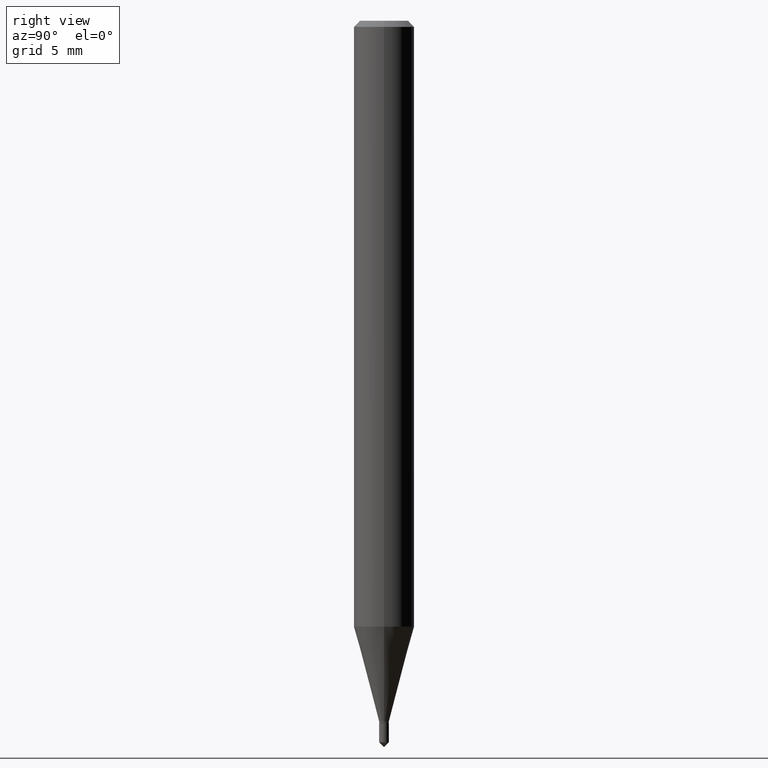
[diagram: clean part render]
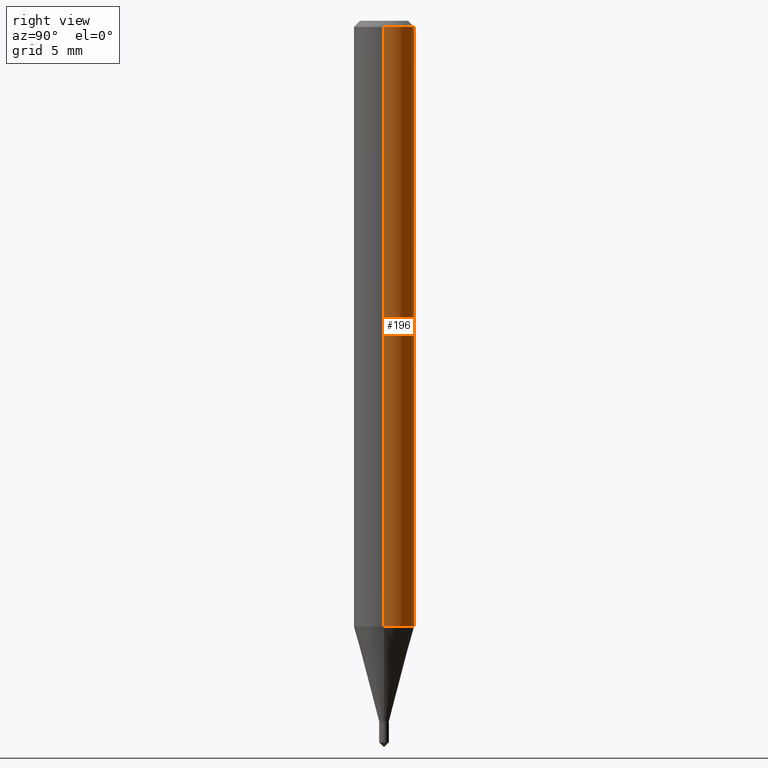
[diagram: same view with one face highlighted and labeled with its STEP entity id]
A machine part, right view. The second image highlights one B-rep face of the part: STEP entity #196.
In plain terms, the highlighted cylindrical surface (edge-blend (fillet) strip) has radius 1.5875 mm, axis along (-0, 0, 1).
Its self-contained STEP definition (entity closure, byte-faithful):
#12 = CARTESIAN_POINT ( 'NONE',  ( 0.06250000000000000000, -4.800786840909313294E-16, -0.01250000000000008570 ) ) ;
#18 = CARTESIAN_POINT ( 'NONE',  ( 0.000000000000000000, 0.000000000000000000, 0.000000000000000000 ) ) ;
#20 = EDGE_CURVE ( 'NONE', #182, #185, #81, .T. ) ;
#28 = AXIS2_PLACEMENT_3D ( 'NONE', #430, #89, #239 ) ;
#29 = DIRECTION ( 'NONE',  ( -2.445468806185136597E-29, 3.491481338843145583E-15, 1.000000000000000000 ) ) ;
#37 = ORIENTED_EDGE ( 'NONE', *, *, #65, .T. ) ;
#65 = EDGE_CURVE ( 'NONE', #141, #289, #383, .T. ) ;
#70 = CARTESIAN_POINT ( 'NONE',  ( 3.059446136316986925E-29, -4.368078245418367740E-15, -1.251067332602634252 ) ) ;
#81 = LINE ( 'NONE', #264, #406 ) ;
#89 = DIRECTION ( 'NONE',  ( -2.445468806185136597E-29, 3.491481338843145583E-15, 1.000000000000000000 ) ) ;
#141 = VERTEX_POINT ( 'NONE', #420 ) ;
#148 = DIRECTION ( 'NONE',  ( -2.445468806185136877E-29, 3.491481338843145188E-15, 1.000000000000000000 ) ) ;
#153 = CARTESIAN_POINT ( 'NONE',  ( -0.06250000000000006939, 4.440892098500631092E-16, -3.074334431409319617E-30 ) ) ;
#182 = VERTEX_POINT ( 'NONE', #396 ) ;
#185 = VERTEX_POINT ( 'NONE', #12 ) ;
#194 = DIRECTION ( 'NONE',  ( -2.445468806185136877E-29, 3.491481338843145188E-15, 1.000000000000000000 ) ) ;
#196 = ADVANCED_FACE ( 'NONE', ( #285 ), #321, .T. ) ;
#199 = CIRCLE ( 'NONE', #28, 0.06250000000000000000 ) ;
#204 = DIRECTION ( 'NONE',  ( -2.445468806185136597E-29, 3.491481338843145583E-15, 1.000000000000000000 ) ) ;
#205 = VECTOR ( 'NONE', #194, 39.37007874015748143 ) ;
#239 = DIRECTION ( 'NONE',  ( 1.000000000000000000, -6.982962677686266711E-15, 0.000000000000000000 ) ) ;
#259 = AXIS2_PLACEMENT_3D ( 'NONE', #18, #204, #436 ) ;
#264 = CARTESIAN_POINT ( 'NONE',  ( 0.06250000000000006939, -4.364351673553922118E-16, 3.047610484872463724E-30 ) ) ;
#277 = EDGE_CURVE ( 'NONE', #185, #289, #199, .T. ) ;
#285 = FACE_OUTER_BOUND ( 'NONE', #374, .T. ) ;
#287 = ORIENTED_EDGE ( 'NONE', *, *, #357, .T. ) ;
#289 = VERTEX_POINT ( 'NONE', #471 ) ;
#307 = ORIENTED_EDGE ( 'NONE', *, *, #277, .F. ) ;
#321 = CYLINDRICAL_SURFACE ( 'NONE', #259, 0.06250000000000006939 ) ;
#337 = AXIS2_PLACEMENT_3D ( 'NONE', #70, #29, #404 ) ;
#357 = EDGE_CURVE ( 'NONE', #182, #141, #377, .T. ) ;
#374 = EDGE_LOOP ( 'NONE', ( #287, #37, #307, #452 ) ) ;
#377 = CIRCLE ( 'NONE', #337, 0.06250000000000015266 ) ;
#383 = LINE ( 'NONE', #153, #205 ) ;
#396 = CARTESIAN_POINT ( 'NONE',  ( 0.06250000000000015266, -4.804513412773760987E-15, -1.251067332602634252 ) ) ;
#404 = DIRECTION ( 'NONE',  ( 1.000000000000000000, -6.982962677686269077E-15, 0.000000000000000000 ) ) ;
#406 = VECTOR ( 'NONE', #148, 39.37007874015748143 ) ;
#420 = CARTESIAN_POINT ( 'NONE',  ( -0.06250000000000015266, -3.923989035568304335E-15, -1.251067332602634252 ) ) ;
#430 = CARTESIAN_POINT ( 'NONE',  ( 3.056836007731441853E-31, -4.364351673553962300E-17, -0.01250000000000008570 ) ) ;
#436 = DIRECTION ( 'NONE',  ( 1.000000000000000000, -6.982962677686267499E-15, 4.876176775795936353E-29 ) ) ;
#452 = ORIENTED_EDGE ( 'NONE', *, *, #20, .F. ) ;
#471 = CARTESIAN_POINT ( 'NONE',  ( -0.06250000000000000000, -1.761771671226889654E-15, -0.01250000000000008570 ) ) ;